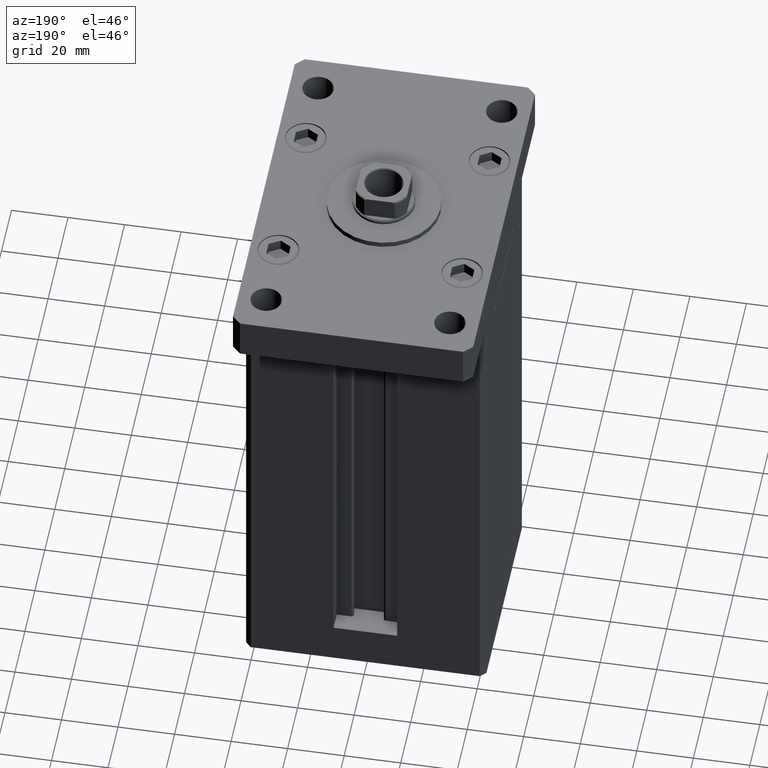
[diagram: clean part render]
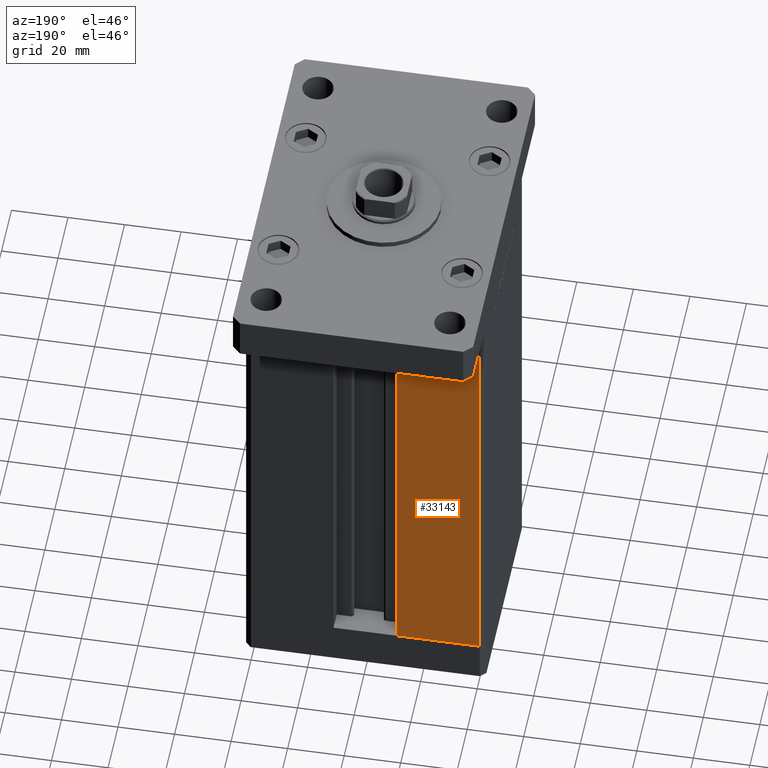
[diagram: same view with one face highlighted and labeled with its STEP entity id]
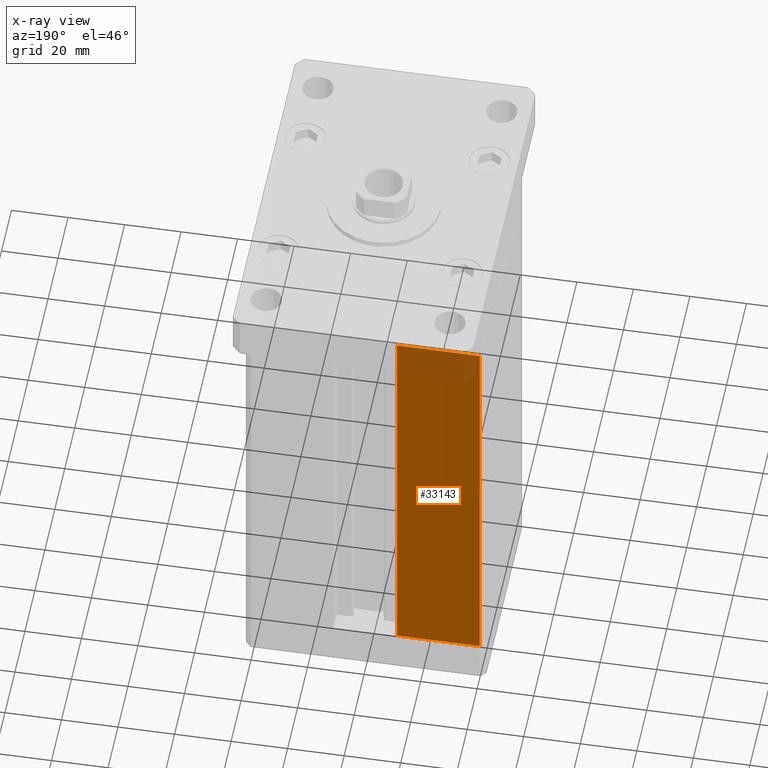
[diagram: x-ray of the same camera — body ghosted, the highlighted face saturated]
A machine part, auxiliary view. The second image highlights one B-rep face of the part: STEP entity #33143.
The next image is the same camera in x-ray: the body ghosted, the highlighted face saturated — about 9% of this face is hidden behind the body in this view.
In plain terms, the highlighted planar face has unit normal (-0, -1, 0).
Its self-contained STEP definition (entity closure, byte-faithful):
#2501 = CARTESIAN_POINT ( 'NONE',  ( -11.25000000000000000, 37.50000000000000000, 145.5000000000000000 ) ) ;
#4408 = CARTESIAN_POINT ( 'NONE',  ( -11.25000000000000000, 37.50000000000000000, 0.000000000000000000 ) ) ;
#5786 = EDGE_CURVE ( 'NONE', #7176, #13834, #42380, .T. ) ;
#5884 = ORIENTED_EDGE ( 'NONE', *, *, #51398, .F. ) ;
#6323 = VECTOR ( 'NONE', #35044, 1000.000000000000000 ) ;
#6537 = LINE ( 'NONE', #10883, #22797 ) ;
#7176 = VERTEX_POINT ( 'NONE', #41042 ) ;
#7736 = AXIS2_PLACEMENT_3D ( 'NONE', #2501, #31260, #27755 ) ;
#9532 = CARTESIAN_POINT ( 'NONE',  ( -40.50000000000000000, 37.50000000000000711, 0.000000000000000000 ) ) ;
#10883 = CARTESIAN_POINT ( 'NONE',  ( -40.50000000000000000, 37.50000000000000711, 145.5000000000000000 ) ) ;
#11188 = PLANE ( 'NONE',  #7736 ) ;
#13834 = VERTEX_POINT ( 'NONE', #9532 ) ;
#15445 = VECTOR ( 'NONE', #45653, 1000.000000000000000 ) ;
#15522 = FACE_OUTER_BOUND ( 'NONE', #42972, .T. ) ;
#17474 = CARTESIAN_POINT ( 'NONE',  ( -11.25000000000000000, 37.50000000000000000, 145.5000000000000000 ) ) ;
#22797 = VECTOR ( 'NONE', #43174, 1000.000000000000000 ) ;
#25816 = LINE ( 'NONE', #42067, #29620 ) ;
#27755 = DIRECTION ( 'NONE',  ( 1.000000000000000000, -2.372271420139223331E-16, 0.000000000000000000 ) ) ;
#29613 = DIRECTION ( 'NONE',  ( -0.000000000000000000, -0.000000000000000000, 1.000000000000000000 ) ) ;
#29620 = VECTOR ( 'NONE', #29613, 1000.000000000000000 ) ;
#30563 = VERTEX_POINT ( 'NONE', #49188 ) ;
#31260 = DIRECTION ( 'NONE',  ( -2.372271420139223331E-16, -1.000000000000000000, 0.000000000000000000 ) ) ;
#33143 = ADVANCED_FACE ( 'NONE', ( #15522 ), #11188, .F. ) ;
#35044 = DIRECTION ( 'NONE',  ( 1.000000000000000000, 0.000000000000000000, 0.000000000000000000 ) ) ;
#38874 = LINE ( 'NONE', #17474, #6323 ) ;
#39483 = ORIENTED_EDGE ( 'NONE', *, *, #44746, .F. ) ;
#39717 = VERTEX_POINT ( 'NONE', #48497 ) ;
#40375 = ORIENTED_EDGE ( 'NONE', *, *, #45296, .T. ) ;
#41042 = CARTESIAN_POINT ( 'NONE',  ( -11.25000000000000000, 37.50000000000000000, 0.000000000000000000 ) ) ;
#42067 = CARTESIAN_POINT ( 'NONE',  ( -11.25000000000000000, 37.50000000000000000, 0.000000000000000000 ) ) ;
#42380 = LINE ( 'NONE', #4408, #15445 ) ;
#42972 = EDGE_LOOP ( 'NONE', ( #40375, #39483, #53385, #5884 ) ) ;
#43174 = DIRECTION ( 'NONE',  ( -0.000000000000000000, -0.000000000000000000, -1.000000000000000000 ) ) ;
#44746 = EDGE_CURVE ( 'NONE', #7176, #30563, #25816, .T. ) ;
#45296 = EDGE_CURVE ( 'NONE', #39717, #30563, #38874, .T. ) ;
#45653 = DIRECTION ( 'NONE',  ( -1.000000000000000000, 2.372271420139223331E-16, 0.000000000000000000 ) ) ;
#48497 = CARTESIAN_POINT ( 'NONE',  ( -40.50000000000000000, 37.50000000000000711, 145.5000000000000000 ) ) ;
#49188 = CARTESIAN_POINT ( 'NONE',  ( -11.25000000000000000, 37.50000000000000000, 145.5000000000000000 ) ) ;
#51398 = EDGE_CURVE ( 'NONE', #39717, #13834, #6537, .T. ) ;
#53385 = ORIENTED_EDGE ( 'NONE', *, *, #5786, .T. ) ;